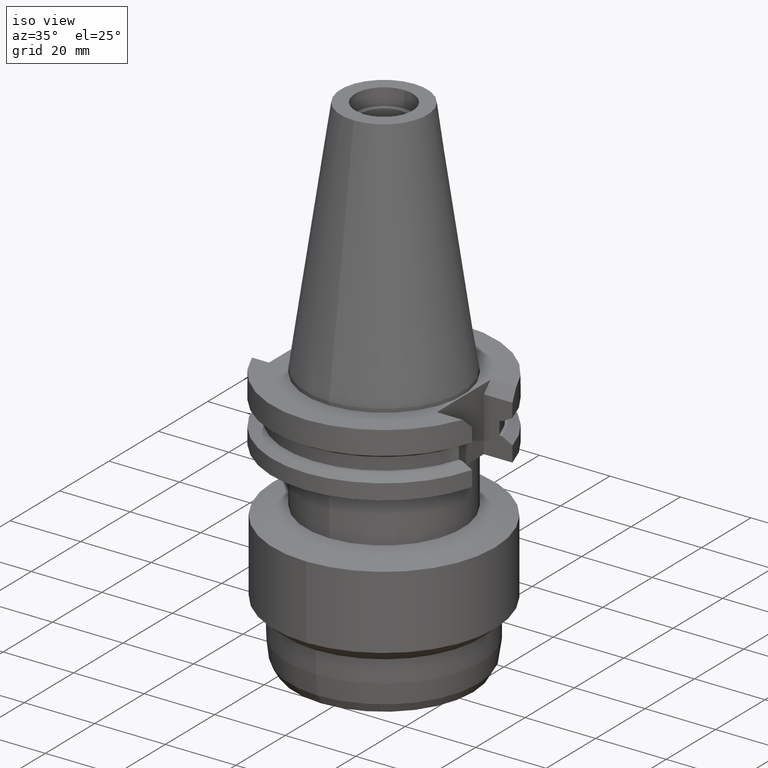
[diagram: clean part render]
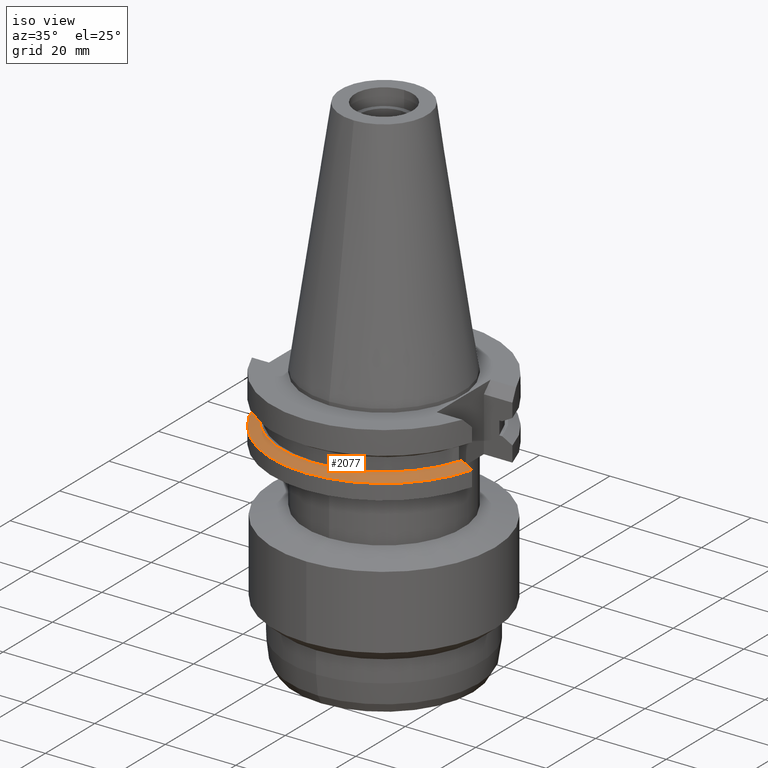
[diagram: same view with one face highlighted and labeled with its STEP entity id]
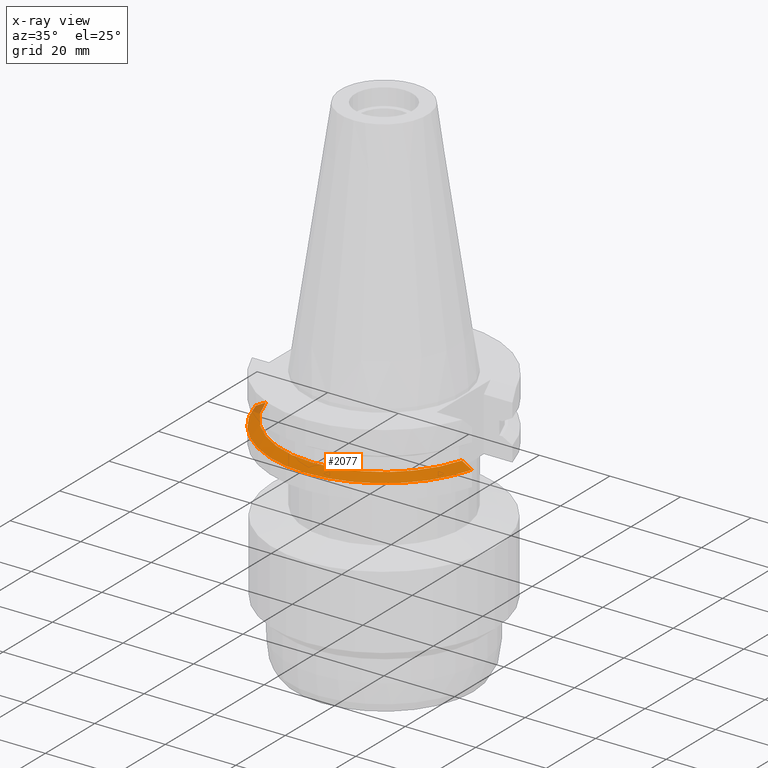
[diagram: x-ray of the same camera — body ghosted, the highlighted face saturated]
A machine part, iso view. The second image highlights one B-rep face of the part: STEP entity #2077.
The next image is the same camera in x-ray: the body ghosted, the highlighted face saturated — about 2% of this face is hidden behind the body in this view.
In plain terms, the highlighted conical surface has half-angle 60 deg.
Its self-contained STEP definition (entity closure, byte-faithful):
#750=CARTESIAN_POINT('',(0.E0,1.055026073065E-14,-1.30475E1));
#751=DIRECTION('',(0.E0,0.E0,-1.E0));
#752=DIRECTION('',(9.592008904640E-1,-2.827253998727E-1,0.E0));
#753=AXIS2_PLACEMENT_3D('',#750,#751,#752);
#758=CARTESIAN_POINT('',(0.E0,1.055026073065E-14,-1.30475E1));
#759=DIRECTION('',(0.E0,0.E0,-1.E0));
#760=DIRECTION('',(0.E0,-1.E0,0.E0));
#761=AXIS2_PLACEMENT_3D('',#758,#759,#760);
#782=CARTESIAN_POINT('',(2.778616453978E1,-8.190000190837E0,-1.30475E1));
#783=CARTESIAN_POINT('',(2.809947486409E1,-8.190000190837E0,-1.322100965626E1));
#784=CARTESIAN_POINT('',(2.873123315408E1,-8.189999991811E0,-1.357134151016E1));
#785=CARTESIAN_POINT('',(2.969433539034E1,-8.189999742408E0,-1.410675043333E1));
#786=CARTESIAN_POINT('',(3.034671897413E1,-8.190000606508E0,-1.447027360020E1));
#787=CARTESIAN_POINT('',(3.067550146396E1,-8.190000606508E0,-1.465367218895E1));
#792=CARTESIAN_POINT('',(0.E0,1.055026073065E-14,-1.465366676908E1));
#793=DIRECTION('',(0.E0,0.E0,-1.E0));
#794=DIRECTION('',(9.661575315241E-1,-2.579527559055E-1,0.E0));
#795=AXIS2_PLACEMENT_3D('',#792,#793,#794);
#800=CARTESIAN_POINT('',(0.E0,1.055026073065E-14,-1.465366676908E1));
#801=DIRECTION('',(0.E0,0.E0,-1.E0));
#802=DIRECTION('',(0.E0,-1.E0,0.E0));
#803=AXIS2_PLACEMENT_3D('',#800,#801,#802);
#808=CARTESIAN_POINT('',(-3.067550165948E1,-8.189999874209E0,
-1.465366564500E1));
#809=CARTESIAN_POINT('',(-3.034672513506E1,-8.189999874209E0,
-1.447027038032E1));
#810=CARTESIAN_POINT('',(-2.969433710801E1,-8.189999973383E0,
-1.410675405290E1));
#811=CARTESIAN_POINT('',(-2.873123841660E1,-8.190000281848E0,
-1.357134726959E1));
#812=CARTESIAN_POINT('',(-2.809947507463E1,-8.189999360101E0,
-1.322100284990E1));
#813=CARTESIAN_POINT('',(-2.778617704899E1,-8.189999360101E0,-1.30475E1));
#1410=CARTESIAN_POINT('',(3.067550146396E1,-8.190000606508E0,
-1.465367218895E1));
#1411=VERTEX_POINT('',#1410);
#1412=VERTEX_POINT('',#782);
#1422=CARTESIAN_POINT('',(-3.067550165948E1,-8.189999874209E0,
-1.465366564500E1));
#1423=VERTEX_POINT('',#1422);
#1424=CARTESIAN_POINT('',(0.E0,-3.175E1,-1.465366676908E1));
#1425=VERTEX_POINT('',#1424);
#1443=CARTESIAN_POINT('',(-2.778617704899E1,-8.189999360101E0,-1.30475E1));
#1444=VERTEX_POINT('',#1443);
#1465=CARTESIAN_POINT('',(3.537899182731E-14,-2.896803755053E1,-1.30475E1));
#1466=VERTEX_POINT('',#1465);
#2064=CARTESIAN_POINT('',(0.E0,1.055026073065E-14,-1.385058338454E1));
#2065=DIRECTION('',(0.E0,0.E0,-1.E0));
#2066=DIRECTION('',(0.E0,-1.E0,0.E0));
#2067=AXIS2_PLACEMENT_3D('',#2064,#2065,#2066);
#2068=CONICAL_SURFACE('',#2067,3.035901877527E1,6.E1);
#2069=ORIENTED_EDGE('',*,*,#1944,.T.);
#2070=ORIENTED_EDGE('',*,*,#1972,.T.);
#2071=ORIENTED_EDGE('',*,*,#1970,.T.);
#2072=ORIENTED_EDGE('',*,*,#1994,.T.);
#2073=ORIENTED_EDGE('',*,*,#2056,.F.);
#2074=ORIENTED_EDGE('',*,*,#2054,.F.);
#2075=EDGE_LOOP('',(#2069,#2070,#2071,#2072,#2073,#2074));
#2076=FACE_OUTER_BOUND('',#2075,.F.);
#754=CIRCLE('',#753,2.896803755053E1);
#762=CIRCLE('',#761,2.896803755053E1);
#788=B_SPLINE_CURVE_WITH_KNOTS('',3,(#782,#783,#784,#785,#786,#787),
.UNSPECIFIED.,.F.,.F.,(4,1,1,4),(0.E0,3.333333333333E-1,6.666666666667E-1,1.E0),
.UNSPECIFIED.);
#796=CIRCLE('',#795,3.175E1);
#804=CIRCLE('',#803,3.175E1);
#814=B_SPLINE_CURVE_WITH_KNOTS('',3,(#808,#809,#810,#811,#812,#813),
.UNSPECIFIED.,.F.,.F.,(4,1,1,4),(0.E0,3.333333333333E-1,6.666666666667E-1,1.E0),
.UNSPECIFIED.);
#1944=EDGE_CURVE('',#1412,#1411,#788,.T.);
#1970=EDGE_CURVE('',#1425,#1423,#804,.T.);
#1972=EDGE_CURVE('',#1411,#1425,#796,.T.);
#1994=EDGE_CURVE('',#1423,#1444,#814,.T.);
#2054=EDGE_CURVE('',#1412,#1466,#754,.T.);
#2056=EDGE_CURVE('',#1466,#1444,#762,.T.);
#2077=ADVANCED_FACE('',(#2076),#2068,.T.);